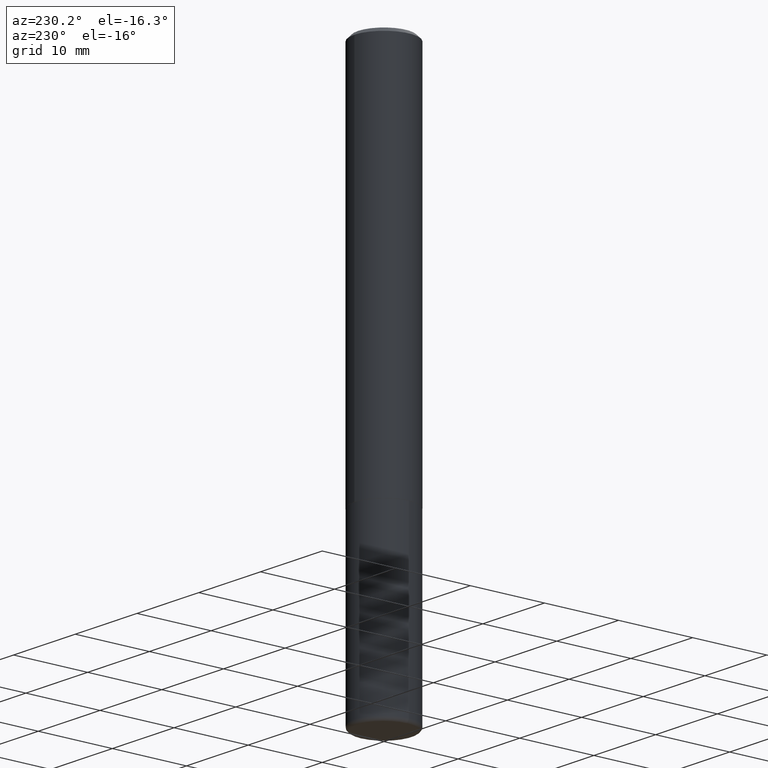
[diagram: clean part render]
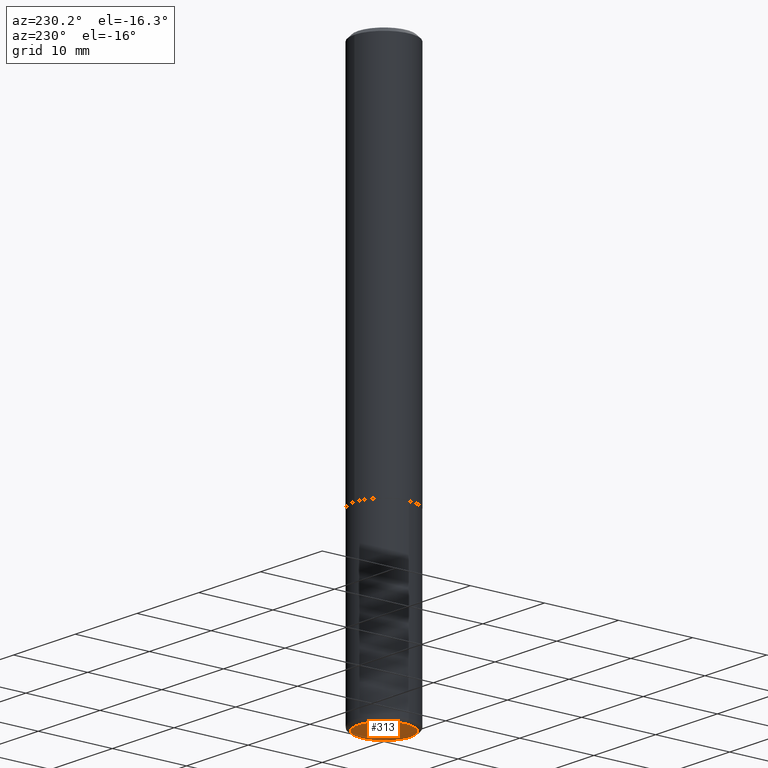
[diagram: same view with one face highlighted and labeled with its STEP entity id]
A machine part, auxiliary view. The second image highlights one B-rep face of the part: STEP entity #313.
In plain terms, the highlighted planar face has unit normal (0, -0, -1).
Its self-contained STEP definition (entity closure, byte-faithful):
#34 = AXIS2_PLACEMENT_3D ( 'NONE', #190, #38, #218 ) ;
#37 = ORIENTED_EDGE ( 'NONE', *, *, #138, .F. ) ;
#38 = DIRECTION ( 'NONE',  ( -2.445468806185136597E-29, 3.491481338843145583E-15, 1.000000000000000000 ) ) ;
#44 = CARTESIAN_POINT ( 'NONE',  ( 1.539641889943640501E-28, 1.398047307151391125E-15, -2.952799999999998981 ) ) ;
#67 = EDGE_LOOP ( 'NONE', ( #37, #350 ) ) ;
#69 = AXIS2_PLACEMENT_3D ( 'NONE', #91, #312, #351 ) ;
#91 = CARTESIAN_POINT ( 'NONE',  ( 7.220980290903469061E-29, -1.030964609733603695E-14, -2.952799999999998981 ) ) ;
#107 = CARTESIAN_POINT ( 'NONE',  ( -0.1378000000000000058, -9.226138656798647747E-15, -2.952799999999998981 ) ) ;
#136 = DIRECTION ( 'NONE',  ( -1.000000000000000000, 6.982962677686265922E-15, -4.876176775795935793E-29 ) ) ;
#138 = EDGE_CURVE ( 'NONE', #213, #374, #237, .T. ) ;
#190 = CARTESIAN_POINT ( 'NONE',  ( 7.220980290903469061E-29, -1.030964609733603695E-14, -2.952799999999998981 ) ) ;
#213 = VERTEX_POINT ( 'NONE', #278 ) ;
#218 = DIRECTION ( 'NONE',  ( 1.000000000000000000, -6.982962677686265922E-15, 0.000000000000000000 ) ) ;
#236 = EDGE_CURVE ( 'NONE', #374, #213, #378, .T. ) ;
#237 = CIRCLE ( 'NONE', #69, 0.1378000000000000058 ) ;
#254 = FACE_OUTER_BOUND ( 'NONE', #67, .T. ) ;
#278 = CARTESIAN_POINT ( 'NONE',  ( 0.1378000000000000058, -1.127189835432120443E-14, -2.952799999999998981 ) ) ;
#290 = PLANE ( 'NONE',  #356 ) ;
#297 = DIRECTION ( 'NONE',  ( 2.438088387897960049E-29, -3.491481338843145188E-15, -1.000000000000000000 ) ) ;
#312 = DIRECTION ( 'NONE',  ( -2.445468806185136597E-29, 3.491481338843145583E-15, 1.000000000000000000 ) ) ;
#313 = ADVANCED_FACE ( 'NONE', ( #254 ), #290, .T. ) ;
#350 = ORIENTED_EDGE ( 'NONE', *, *, #236, .F. ) ;
#351 = DIRECTION ( 'NONE',  ( 1.000000000000000000, -6.982962677686265922E-15, 0.000000000000000000 ) ) ;
#356 = AXIS2_PLACEMENT_3D ( 'NONE', #44, #297, #136 ) ;
#374 = VERTEX_POINT ( 'NONE', #107 ) ;
#378 = CIRCLE ( 'NONE', #34, 0.1378000000000000058 ) ;